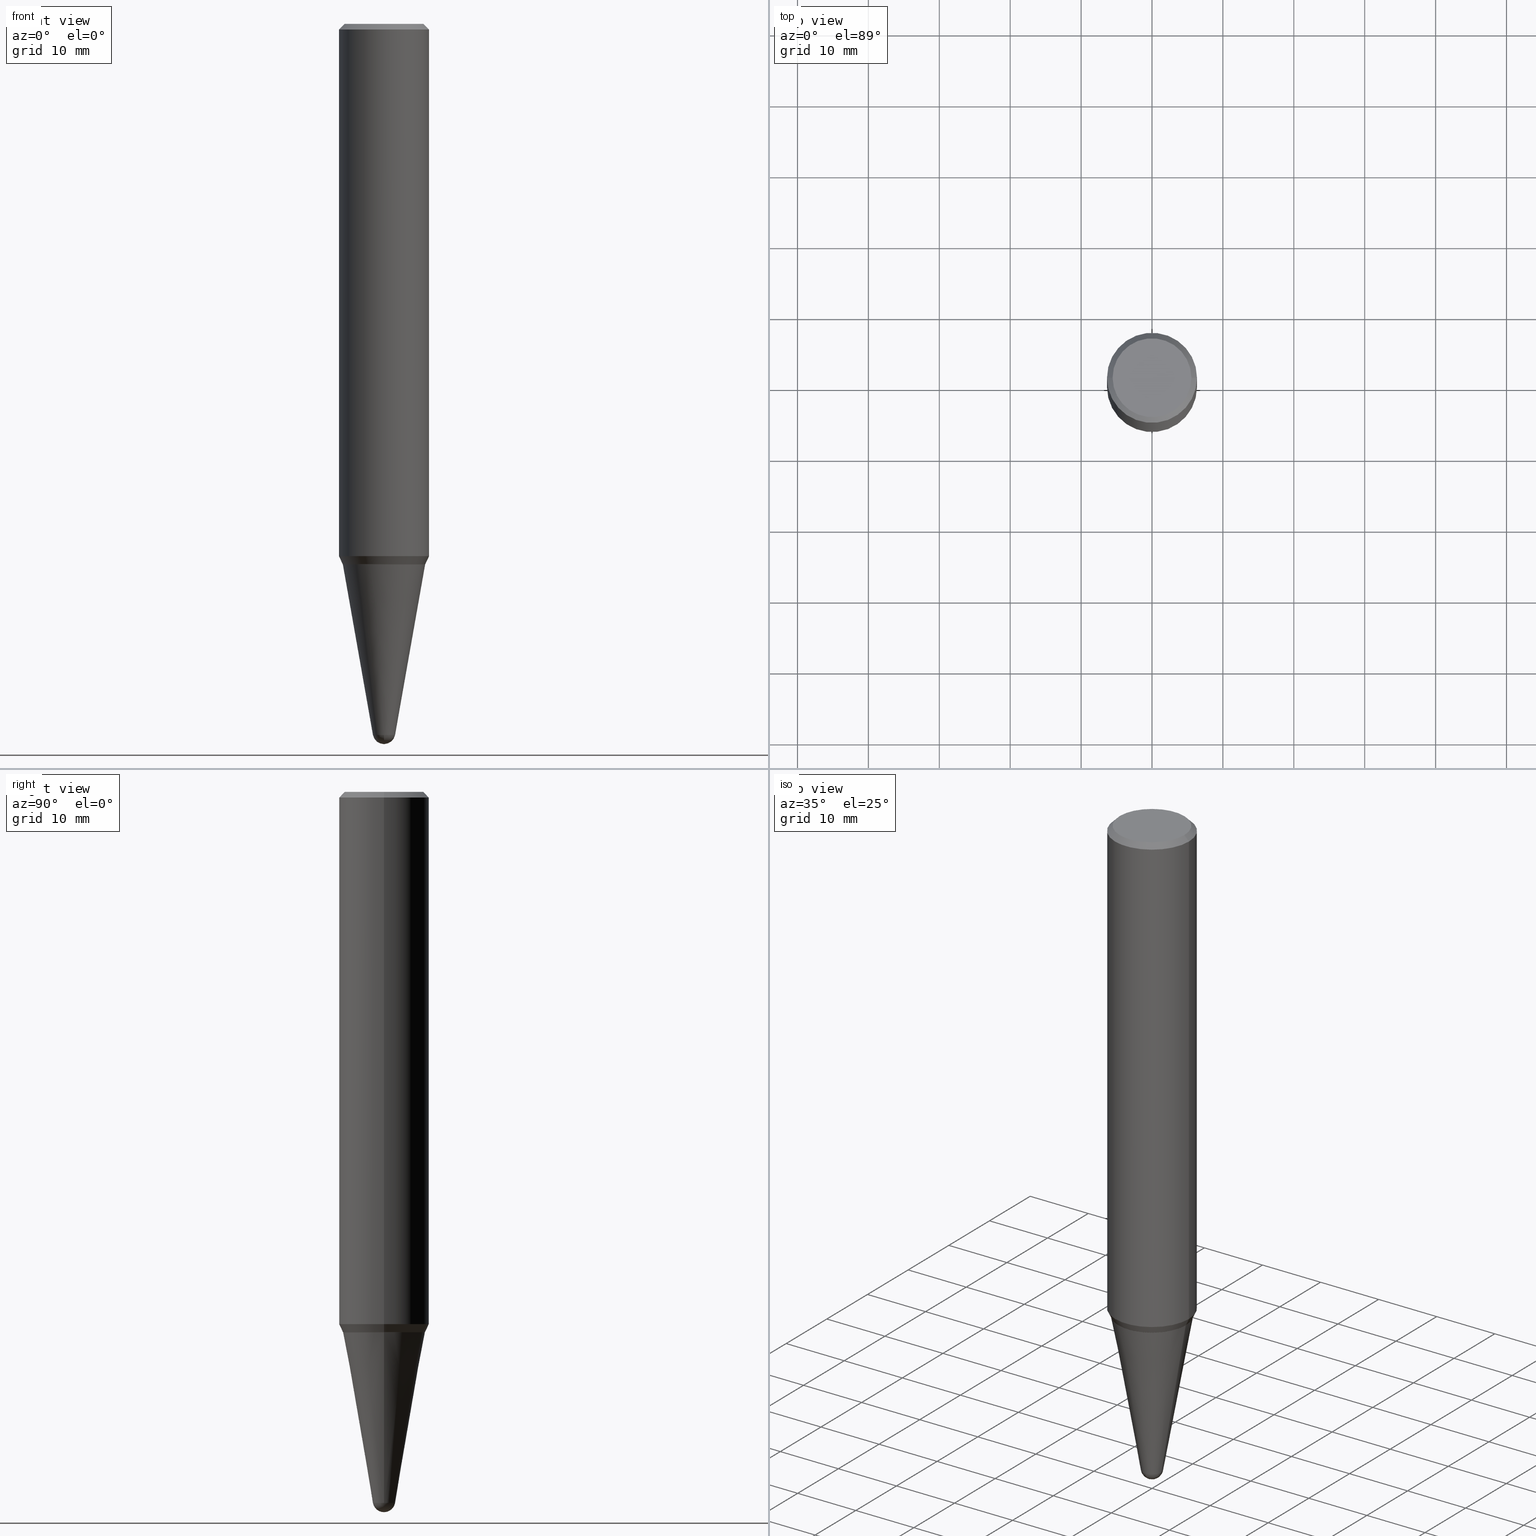
[diagram: canonical four-view strip — front | top / right | iso, engineering-drawing reading convention]
A machine part, canonical four-view strip (front | top / right | iso — engineering-drawing reading convention). The complete STEP part file that produces these views, byte-faithful:
ISO-10303-21;
HEADER;
FILE_DESCRIPTION (( 'STEP AP203' ),
    '1' );
FILE_NAME ('32464.STEP',
    '2024-03-04T15:25:31',
    ( '' ),
    ( '' ),
    'SwSTEP 2.0',
    'SolidWorks 2023',
    '' );
FILE_SCHEMA (( 'CONFIG_CONTROL_DESIGN' ));
ENDSEC;

DATA;
#1 = EDGE_LOOP ( 'NONE', ( #284, #396, #358, #324 ) ) ;
#2 = ORIENTED_EDGE ( 'NONE', *, *, #27, .F. ) ;
#3 = DIRECTION ( 'NONE',  ( 2.445468806185136597E-29, -3.491481338843145583E-15, -1.000000000000000000 ) ) ;
#4 = ORIENTED_EDGE ( 'NONE', *, *, #212, .F. ) ;
#5 = PLANE ( 'NONE',  #149 ) ;
#6 = CARTESIAN_POINT ( 'NONE',  ( 4.486072164429078595E-45, -6.404922118488073332E-31, -1.834442603840539745E-16 ) ) ;
#7 = ORIENTED_EDGE ( 'NONE', *, *, #165, .F. ) ;
#8 = APPROVAL_PERSON_ORGANIZATION ( #25, #404, #241 ) ;
#9 = VERTEX_POINT ( 'NONE', #114 ) ;
#10 = CC_DESIGN_PERSON_AND_ORGANIZATION_ASSIGNMENT ( #134, #66, ( #167 ) ) ;
#11 = CARTESIAN_POINT ( 'NONE',  ( -0.2292707076570457414, -8.845377658046522244E-15, -3.000000000000000444 ) ) ;
#12 =( NAMED_UNIT ( * ) SI_UNIT ( $, .STERADIAN. ) SOLID_ANGLE_UNIT ( ) );
#13 = CARTESIAN_POINT ( 'NONE',  ( 7.336406418555409790E-29, -1.047444401652943635E-14, -3.000000000000000444 ) ) ;
#14 = ADVANCED_FACE ( 'NONE', ( #304 ), #5, .F. ) ;
#15 = CONICAL_SURFACE ( 'NONE', #203, 0.2297707076570451590, 0.4363323129985956506 ) ;
#16 = CARTESIAN_POINT ( 'NONE',  ( 7.335183684152315868E-29, -1.047269827586001248E-14, -2.999499999999999389 ) ) ;
#17 = CIRCLE ( 'NONE', #64, 0.2500000000000000000 ) ;
#18 = CARTESIAN_POINT ( 'NONE',  ( 9.963078480233227451E-29, -1.326933623901194488E-14, -3.937499999999999556 ) ) ;
#19 = APPROVAL_DATE_TIME ( #58, #404 ) ;
#20 = DIRECTION ( 'NONE',  ( 2.438088387897960049E-29, -3.491481338843145188E-15, -1.000000000000000000 ) ) ;
#21 = DATE_AND_TIME ( #376, #150 ) ;
#22 = CARTESIAN_POINT ( 'NONE',  ( -1.450455682483482035E-44, 2.070866303999251778E-30, 5.931196827434296760E-16 ) ) ;
#23 = ADVANCED_FACE ( 'NONE', ( #50 ), #15, .T. ) ;
#24 = EDGE_CURVE ( 'NONE', #190, #460, #83, .T. ) ;
#25 = PERSON_AND_ORGANIZATION ( #228, #101 ) ;
#26 = COORDINATED_UNIVERSAL_TIME_OFFSET ( 5, 0, .BEHIND. ) ;
#27 = EDGE_CURVE ( 'NONE', #265, #43, #39, .T. ) ;
#28 = AXIS2_PLACEMENT_3D ( 'NONE', #22, #447, #371 ) ;
#29 = CONICAL_SURFACE ( 'NONE', #109, 0.2500000000000000000, 0.7853981633974501664 ) ;
#30 = AXIS2_PLACEMENT_3D ( 'NONE', #391, #40, #422 ) ;
#31 = DIRECTION ( 'NONE',  ( 1.000000000000000000, -6.982962677686276177E-15, 0.000000000000000000 ) ) ;
#32 = ORIENTED_EDGE ( 'NONE', *, *, #340, .F. ) ;
#33 = EDGE_CURVE ( 'NONE', #268, #390, #225, .T. ) ;
#34 = DIRECTION ( 'NONE',  ( 1.000000000000000000, -6.982962677686267499E-15, 0.000000000000000000 ) ) ;
#35 = EDGE_LOOP ( 'NONE', ( #73, #71 ) ) ;
#36 = DIRECTION ( 'NONE',  ( -2.445468806185136597E-29, 3.491481338843145583E-15, 1.000000000000000000 ) ) ;
#37 = ORIENTED_EDGE ( 'NONE', *, *, #162, .T. ) ;
#38 = DIRECTION ( 'NONE',  ( -2.445468806185136597E-29, 3.491481338843145583E-15, 1.000000000000000000 ) ) ;
#39 = CIRCLE ( 'NONE', #159, 0.2287707076570457132 ) ;
#40 = DIRECTION ( 'NONE',  ( -2.445468806185136597E-29, 3.491481338843145583E-15, 1.000000000000000000 ) ) ;
#41 = CC_DESIGN_APPROVAL ( #178, ( #443 ) ) ;
#42 = VERTEX_POINT ( 'NONE', #329 ) ;
#43 = VERTEX_POINT ( 'NONE', #429 ) ;
#44 = FACE_OUTER_BOUND ( 'NONE', #35, .T. ) ;
#45 = ORIENTED_EDGE ( 'NONE', *, *, #132, .T. ) ;
#46 = CARTESIAN_POINT ( 'NONE',  ( -0.2187500000000001943, 1.582077481663294407E-15, -3.668885207681187466E-16 ) ) ;
#47 = EDGE_LOOP ( 'NONE', ( #456, #181, #2, #286, #416 ) ) ;
#48 = LINE ( 'NONE', #402, #90 ) ;
#49 = CIRCLE ( 'NONE', #263, 0.2187500000000001943 ) ;
#50 = FACE_OUTER_BOUND ( 'NONE', #401, .T. ) ;
#51 = DIRECTION ( 'NONE',  ( -1.000000000000000000, 6.982962677686266711E-15, 0.000000000000000000 ) ) ;
#52 = PRODUCT_DEFINITION_SHAPE ( 'NONE', 'NONE',  #61 ) ;
#53 = FACE_OUTER_BOUND ( 'NONE', #438, .T. ) ;
#54 = DIRECTION ( 'NONE',  ( 6.982962677686266711E-15, 1.000000000000000000, 0.000000000000000000 ) ) ;
#55 = FACE_OUTER_BOUND ( 'NONE', #185, .T. ) ;
#56 = PERSON_AND_ORGANIZATION ( #228, #101 ) ;
#57 = CARTESIAN_POINT ( 'NONE',  ( -1.450455682483482035E-44, 2.070866303999251778E-30, 5.931196827434296760E-16 ) ) ;
#58 = DATE_AND_TIME ( #210, #450 ) ;
#59 = DIRECTION ( 'NONE',  ( -7.105427357601001859E-15, -1.000000000000000000, 0.000000000000000000 ) ) ;
#60 = ADVANCED_FACE ( 'NONE', ( #116 ), #262, .T. ) ;
#61 = PRODUCT_DEFINITION ( 'UNKNOWN', '', #300, #91 ) ;
#62 = DIRECTION ( 'NONE',  ( 1.000000000000000000, 0.000000000000000000, 0.000000000000000000 ) ) ;
#63 = CONICAL_SURFACE ( 'NONE', #325, 0.2292707076570457414, 0.7853981633961506503 ) ;
#64 = AXIS2_PLACEMENT_3D ( 'NONE', #297, #288, #256 ) ;
#65 = EDGE_CURVE ( 'NONE', #320, #43, #202, .T. ) ;
#66 = PERSON_AND_ORGANIZATION_ROLE ( 'design_owner' ) ;
#67 = DIRECTION ( 'NONE',  ( -0.4226182617407114872, 6.167240084480903876E-15, 0.9063077870366443856 ) ) ;
#68 = ORIENTED_EDGE ( 'NONE', *, *, #74, .T. ) ;
#69 = AXIS2_PLACEMENT_3D ( 'NONE', #310, #333, #405 ) ;
#70 = CARTESIAN_POINT ( 'NONE',  ( -0.06155048456326350781, -1.109859436613565477E-14, -3.948353011104182908 ) ) ;
#71 = ORIENTED_EDGE ( 'NONE', *, *, #147, .T. ) ;
#72 = DIRECTION ( 'NONE',  ( -0.7071067811865487940, 2.468850131082270471E-15, -0.7071067811865462405 ) ) ;
#73 = ORIENTED_EDGE ( 'NONE', *, *, #340, .T. ) ;
#74 = EDGE_CURVE ( 'NONE', #82, #152, #204, .T. ) ;
#75 = CARTESIAN_POINT ( 'NONE',  ( -0.2500000000000000000, 1.636631877582718169E-15, -0.03125000000000005551 ) ) ;
#76 = CC_DESIGN_PERSON_AND_ORGANIZATION_ASSIGNMENT ( #279, #211, ( #300 ) ) ;
#77 = EDGE_LOOP ( 'NONE', ( #113, #224, #289, #234 ) ) ;
#78 = DIRECTION ( 'NONE',  ( 1.000000000000000000, -6.982962677686263555E-15, 0.000000000000000000 ) ) ;
#79 = VECTOR ( 'NONE', #360, 39.37007874015748854 ) ;
#80 = DIRECTION ( 'NONE',  ( -2.445468806185136877E-29, 3.491481338843145188E-15, 1.000000000000000000 ) ) ;
#81 = AXIS2_PLACEMENT_3D ( 'NONE', #187, #459, #354 ) ;
#82 = VERTEX_POINT ( 'NONE', #307 ) ;
#83 = LINE ( 'NONE', #11, #239 ) ;
#84 = DIRECTION ( 'NONE',  ( 1.000000000000000000, -6.982962677686276177E-15, 0.000000000000000000 ) ) ;
#85 = ADVANCED_FACE ( 'NONE', ( #270 ), #99, .T. ) ;
#86 =( NAMED_UNIT ( * ) PLANE_ANGLE_UNIT ( ) SI_UNIT ( $, .RADIAN. ) );
#87 = EDGE_LOOP ( 'NONE', ( #222, #251, #111, #148 ) ) ;
#88 = CARTESIAN_POINT ( 'NONE',  ( 7.642090019328565002E-31, -1.091087918388484967E-16, -0.03125000000000005551 ) ) ;
#89 = PRODUCT_RELATED_PRODUCT_CATEGORY ( 'detail', '', ( #167 ) ) ;
#90 = VECTOR ( 'NONE', #435, 39.37007874015748143 ) ;
#91 = DESIGN_CONTEXT ( 'detailed design', #315, 'design' ) ;
#92 = CARTESIAN_POINT ( 'NONE',  ( 7.642090019328565002E-31, -1.091087918388484967E-16, -0.03125000000000005551 ) ) ;
#93 = DIRECTION ( 'NONE',  ( 1.000000000000000000, -6.982962677686269866E-15, 0.000000000000000000 ) ) ;
#94 = AXIS2_PLACEMENT_3D ( 'NONE', #18, #375, #171 ) ;
#95 = PERSON_AND_ORGANIZATION_ROLE ( 'creator' ) ;
#96 = CC_DESIGN_APPROVAL ( #420, ( #300 ) ) ;
#97 = PLANE ( 'NONE',  #298 ) ;
#98 = EDGE_CURVE ( 'NONE', #390, #9, #131, .T. ) ;
#99 = SPHERICAL_SURFACE ( 'NONE', #94, 0.06250000000000013878 ) ;
#100 = DIRECTION ( 'NONE',  ( 0.000000000000000000, 0.000000000000000000, 1.000000000000000000 ) ) ;
#101 = ORGANIZATION ( 'UNSPECIFIED', 'UNSPECIFIED', '' ) ;
#102 = COORDINATED_UNIVERSAL_TIME_OFFSET ( 5, 0, .BEHIND. ) ;
#103 = CARTESIAN_POINT ( 'NONE',  ( -0.2500000000000000000, -3.438813221624728231E-15, -0.03125000000000005551 ) ) ;
#104 = ORIENTED_EDGE ( 'NONE', *, *, #302, .T. ) ;
#105 = EDGE_CURVE ( 'NONE', #327, #322, #139, .T. ) ;
#106 = DIRECTION ( 'NONE',  ( 1.000000000000000000, -6.982962677686276177E-15, 0.000000000000000000 ) ) ;
#107 = ORIENTED_EDGE ( 'NONE', *, *, #309, .T. ) ;
#108 = AXIS2_PLACEMENT_3D ( 'NONE', #249, #252, #31 ) ;
#109 = AXIS2_PLACEMENT_3D ( 'NONE', #88, #127, #51 ) ;
#110 = DIRECTION ( 'NONE',  ( 1.000000000000000000, -6.982962677686276177E-15, 0.000000000000000000 ) ) ;
#111 = ORIENTED_EDGE ( 'NONE', *, *, #117, .F. ) ;
#112 = FACE_OUTER_BOUND ( 'NONE', #47, .T. ) ;
#113 = ORIENTED_EDGE ( 'NONE', *, *, #200, .F. ) ;
#114 = CARTESIAN_POINT ( 'NONE',  ( 0.2500000000000003886, -1.206697199963268443E-14, -2.956118142573522345 ) ) ;
#115 = DIRECTION ( 'NONE',  ( -2.445468806185136597E-29, 3.491481338843145583E-15, 1.000000000000000000 ) ) ;
#116 = FACE_OUTER_BOUND ( 'NONE', #423, .T. ) ;
#117 = EDGE_CURVE ( 'NONE', #390, #460, #397, .T. ) ;
#118 = AXIS2_PLACEMENT_3D ( 'NONE', #57, #243, #339 ) ;
#119 = DIRECTION ( 'NONE',  ( 0.1736481776669305255, 2.225859148293764464E-15, 0.9848077530122080203 ) ) ;
#120 =( GEOMETRIC_REPRESENTATION_CONTEXT ( 3 ) GLOBAL_UNCERTAINTY_ASSIGNED_CONTEXT ( ( #411 ) ) GLOBAL_UNIT_ASSIGNED_CONTEXT ( ( #266, #86, #12 ) ) REPRESENTATION_CONTEXT ( 'NONE', 'WORKASPACE' ) );
#121 = EDGE_LOOP ( 'NONE', ( #356, #32, #305, #143 ) ) ;
#122 =( LENGTH_UNIT ( ) NAMED_UNIT ( * ) SI_UNIT ( $, .METRE. ) );
#123 = ADVANCED_FACE ( 'NONE', ( #274 ), #454, .T. ) ;
#124 = CC_DESIGN_DATE_AND_TIME_ASSIGNMENT ( #21, #348, ( #443 ) ) ;
#125 = DIRECTION ( 'NONE',  ( -2.445468806185136597E-29, 3.491481338843145583E-15, 1.000000000000000000 ) ) ;
#126 = ORIENTED_EDGE ( 'NONE', *, *, #98, .F. ) ;
#127 = DIRECTION ( 'NONE',  ( 2.445468806185136597E-29, -3.491481338843145583E-15, -1.000000000000000000 ) ) ;
#128 = CIRCLE ( 'NONE', #30, 0.06155048456326350781 ) ;
#129 = DIRECTION ( 'NONE',  ( 0.4226182617407114872, 2.132291770426376174E-16, 0.9063077870366443856 ) ) ;
#130 = DIRECTION ( 'NONE',  ( -2.445468806185136597E-29, 3.491481338843145583E-15, 1.000000000000000000 ) ) ;
#131 = LINE ( 'NONE', #442, #335 ) ;
#132 = EDGE_CURVE ( 'NONE', #188, #152, #344, .T. ) ;
#133 = AXIS2_PLACEMENT_3D ( 'NONE', #92, #130, #377 ) ;
#134 = PERSON_AND_ORGANIZATION ( #228, #101 ) ;
#135 = LOCAL_TIME ( 10, 25, 31.00000000000000000, #316 ) ;
#136 = CARTESIAN_POINT ( 'NONE',  ( 0.2500000000000000000, -1.854849461260415384E-15, -0.03125000000000005551 ) ) ;
#137 = PERSON_AND_ORGANIZATION_ROLE ( 'design_supplier' ) ;
#138 = PERSON_AND_ORGANIZATION ( #228, #101 ) ;
#139 = CIRCLE ( 'NONE', #412, 0.06250000000000013878 ) ;
#140 = CC_DESIGN_SECURITY_CLASSIFICATION ( #443, ( #300 ) ) ;
#141 = DIRECTION ( 'NONE',  ( -2.445468806185136597E-29, 3.491481338843145583E-15, 1.000000000000000000 ) ) ;
#142 = CALENDAR_DATE ( 2024, 4, 3 ) ;
#143 = ORIENTED_EDGE ( 'NONE', *, *, #387, .T. ) ;
#144 = CARTESIAN_POINT ( 'NONE',  ( -0.2297707076570451590, -8.840079203698301420E-15, -2.999499999999999389 ) ) ;
#145 = EDGE_LOOP ( 'NONE', ( #425, #258 ) ) ;
#146 = CARTESIAN_POINT ( 'NONE',  ( 7.642090019328565002E-31, -1.091087918388484967E-16, -0.03125000000000005551 ) ) ;
#147 = EDGE_CURVE ( 'NONE', #349, #434, #49, .T. ) ;
#148 = ORIENTED_EDGE ( 'NONE', *, *, #33, .F. ) ;
#149 = AXIS2_PLACEMENT_3D ( 'NONE', #193, #199, #426 ) ;
#150 = LOCAL_TIME ( 10, 25, 31.00000000000000000, #414 ) ;
#151 = DIRECTION ( 'NONE',  ( 1.000000000000000000, -6.982962677686268288E-15, 0.000000000000000000 ) ) ;
#152 = VERTEX_POINT ( 'NONE', #103 ) ;
#153 = ORIENTED_EDGE ( 'NONE', *, *, #200, .T. ) ;
#154 = CARTESIAN_POINT ( 'NONE',  ( 0.2287707076570457132, -1.207194132984646247E-14, -2.999999999999999556 ) ) ;
#155 = ORIENTED_EDGE ( 'NONE', *, *, #267, .F. ) ;
#156 = DIRECTION ( 'NONE',  ( -0.7071067811856298624, 7.493145998867037789E-15, 0.7071067811874650610 ) ) ;
#157 = ADVANCED_FACE ( 'NONE', ( #53 ), #308, .T. ) ;
#158 = DIRECTION ( 'NONE',  ( -2.445468806185136597E-29, 3.491481338843145583E-15, 1.000000000000000000 ) ) ;
#159 = AXIS2_PLACEMENT_3D ( 'NONE', #437, #125, #78 ) ;
#160 = AXIS2_PLACEMENT_3D ( 'NONE', #462, #257, #151 ) ;
#161 = CARTESIAN_POINT ( 'NONE',  ( 9.655574124462436223E-29, -1.378560085743539787E-14, -3.948353011104182908 ) ) ;
#162 = EDGE_CURVE ( 'NONE', #82, #9, #216, .T. ) ;
#163 = APPLICATION_PROTOCOL_DEFINITION ( 'international standard', 'config_control_design', 1994, #393 ) ;
#164 = EDGE_LOOP ( 'NONE', ( #440, #364, #261, #229, #7 ) ) ;
#165 = EDGE_CURVE ( 'NONE', #43, #265, #182, .T. ) ;
#166 = DIRECTION ( 'NONE',  ( -2.445468806185136597E-29, 3.491481338843145583E-15, 1.000000000000000000 ) ) ;
#167 = PRODUCT ( '32464', '32464', '', ( #374 ) ) ;
#168 = CC_DESIGN_PERSON_AND_ORGANIZATION_ASSIGNMENT ( #213, #95, ( #61 ) ) ;
#169 = CLOSED_SHELL ( 'NONE', ( #445, #157, #123, #217, #14, #250, #23, #60, #273, #245 ) ) ;
#170 = DIRECTION ( 'NONE',  ( 1.000000000000000000, -6.982962677686266711E-15, 4.880466792705917960E-29 ) ) ;
#171 = DIRECTION ( 'NONE',  ( 6.982962677686265922E-15, 1.000000000000000000, 0.000000000000000000 ) ) ;
#172 = CALENDAR_DATE ( 2024, 4, 3 ) ;
#173 = DIRECTION ( 'NONE',  ( -2.445468806185136597E-29, 3.491481338843145583E-15, 1.000000000000000000 ) ) ;
#174 = AXIS2_PLACEMENT_3D ( 'NONE', #6, #291, #424 ) ;
#175 = APPROVAL_STATUS ( 'not_yet_approved' ) ;
#176 = AXIS2_PLACEMENT_3D ( 'NONE', #198, #399, #230 ) ;
#177 = CARTESIAN_POINT ( 'NONE',  ( 7.335183684152315868E-29, -1.047269827586001248E-14, -2.999499999999999389 ) ) ;
#178 = APPROVAL ( #175, 'UNSPECIFIED' ) ;
#179 = APPROVAL_ROLE ( '' ) ;
#180 = APPROVAL_STATUS ( 'not_yet_approved' ) ;
#181 = ORIENTED_EDGE ( 'NONE', *, *, #65, .T. ) ;
#182 = CIRCLE ( 'NONE', #69, 0.2287707076570457132 ) ;
#183 = CIRCLE ( 'NONE', #280, 0.2500000000000003886 ) ;
#184 = DIRECTION ( 'NONE',  ( -2.445468806185136597E-29, 3.491481338843145583E-15, 1.000000000000000000 ) ) ;
#185 = EDGE_LOOP ( 'NONE', ( #191, #215 ) ) ;
#186 = EDGE_CURVE ( 'NONE', #268, #190, #432, .T. ) ;
#187 = CARTESIAN_POINT ( 'NONE',  ( 8.972144328858154701E-45, -1.280984423697614491E-30, -3.668885207681078998E-16 ) ) ;
#188 = VERTEX_POINT ( 'NONE', #136 ) ;
#189 = DIRECTION ( 'NONE',  ( 1.000000000000000000, -6.982962677686269866E-15, 0.000000000000000000 ) ) ;
#190 = VERTEX_POINT ( 'NONE', #206 ) ;
#191 = ORIENTED_EDGE ( 'NONE', *, *, #27, .T. ) ;
#192 = ORIENTED_EDGE ( 'NONE', *, *, #74, .F. ) ;
#193 = CARTESIAN_POINT ( 'NONE',  ( 2.344126477742808465E-29, -1.762367303470133462E-14, -2.999999999999999556 ) ) ;
#194 = PLANE ( 'NONE',  #174 ) ;
#195 = VERTEX_POINT ( 'NONE', #237 ) ;
#196 = AXIS2_PLACEMENT_3D ( 'NONE', #328, #36, #189 ) ;
#197 = AXIS2_PLACEMENT_3D ( 'NONE', #323, #184, #106 ) ;
#198 = CARTESIAN_POINT ( 'NONE',  ( 7.336406418555409790E-29, -1.047444401652943635E-14, -3.000000000000000444 ) ) ;
#199 = DIRECTION ( 'NONE',  ( -2.438088387897960049E-29, 3.491481338843145188E-15, 1.000000000000000000 ) ) ;
#200 = EDGE_CURVE ( 'NONE', #327, #42, #431, .T. ) ;
#201 = CARTESIAN_POINT ( 'NONE',  ( 7.229094705061496755E-29, -1.032123133021111460E-14, -2.956118142573522345 ) ) ;
#202 = LINE ( 'NONE', #369, #278 ) ;
#203 = AXIS2_PLACEMENT_3D ( 'NONE', #332, #38, #259 ) ;
#204 = LINE ( 'NONE', #409, #403 ) ;
#205 = APPLICATION_PROTOCOL_DEFINITION ( 'international standard', 'config_control_design', 1994, #315 ) ;
#206 = CARTESIAN_POINT ( 'NONE',  ( -0.2292707076570457414, -8.842728430872411832E-15, -3.000000000000000444 ) ) ;
#207 = ADVANCED_FACE ( 'NONE', ( #55 ), #97, .F. ) ;
#208 = APPROVAL_DATE_TIME ( #347, #420 ) ;
#209 = AXIS2_PLACEMENT_3D ( 'NONE', #16, #141, #236 ) ;
#210 = CALENDAR_DATE ( 2024, 4, 3 ) ;
#211 = PERSON_AND_ORGANIZATION_ROLE ( 'creator' ) ;
#212 = EDGE_CURVE ( 'NONE', #434, #152, #448, .T. ) ;
#213 = PERSON_AND_ORGANIZATION ( #228, #101 ) ;
#214 = FACE_OUTER_BOUND ( 'NONE', #164, .T. ) ;
#215 = ORIENTED_EDGE ( 'NONE', *, *, #165, .T. ) ;
#216 = CIRCLE ( 'NONE', #246, 0.2500000000000003886 ) ;
#217 = ADVANCED_FACE ( 'NONE', ( #457 ), #63, .T. ) ;
#218 = APPROVAL_PERSON_ORGANIZATION ( #56, #178, #179 ) ;
#219 = DIRECTION ( 'NONE',  ( -1.000000000000000000, 6.982962677686266711E-15, 0.000000000000000000 ) ) ;
#220 = ORIENTED_EDGE ( 'NONE', *, *, #267, .T. ) ;
#221 = CARTESIAN_POINT ( 'NONE',  ( 7.229094705061496755E-29, -1.032123133021111460E-14, -2.956118142573522345 ) ) ;
#222 = ORIENTED_EDGE ( 'NONE', *, *, #186, .T. ) ;
#223 = CARTESIAN_POINT ( 'NONE',  ( 1.011859267527348485E-28, -1.348372680144230682E-14, -4.000000000000000000 ) ) ;
#224 = ORIENTED_EDGE ( 'NONE', *, *, #105, .T. ) ;
#225 = LINE ( 'NONE', #296, #79 ) ;
#226 = AXIS2_PLACEMENT_3D ( 'NONE', #363, #306, #303 ) ;
#227 = FACE_OUTER_BOUND ( 'NONE', #121, .T. ) ;
#228 = PERSON ( 'UNSPECIFIED', 'UNSPECIFIED', 'UNSPECIFIED', ('UNSPECIFIED'), ('UNSPECIFIED'), ('UNSPECIFIED') ) ;
#229 = ORIENTED_EDGE ( 'NONE', *, *, #436, .T. ) ;
#230 = DIRECTION ( 'NONE',  ( 1.000000000000000000, -6.982962677686269866E-15, 0.000000000000000000 ) ) ;
#231 = ORIENTED_EDGE ( 'NONE', *, *, #98, .T. ) ;
#232 = CLOSED_SHELL ( 'NONE', ( #341, #85, #281, #277, #207 ) ) ;
#233 = DIRECTION ( 'NONE',  ( -2.445468806185136597E-29, 3.491481338843145583E-15, 1.000000000000000000 ) ) ;
#234 = ORIENTED_EDGE ( 'NONE', *, *, #317, .F. ) ;
#235 = ORIENTED_EDGE ( 'NONE', *, *, #147, .F. ) ;
#236 = DIRECTION ( 'NONE',  ( 1.000000000000000000, -6.982962677686268288E-15, 0.000000000000000000 ) ) ;
#237 = CARTESIAN_POINT ( 'NONE',  ( 0.06155048456326350781, -1.314367346189031684E-14, -3.948353011104182908 ) ) ;
#238 = AXIS2_PLACEMENT_3D ( 'NONE', #406, #370, #54 ) ;
#239 = VECTOR ( 'NONE', #156, 39.37007874015748854 ) ;
#240 = CC_DESIGN_APPROVAL ( #404, ( #61 ) ) ;
#241 = APPROVAL_ROLE ( '' ) ;
#242 = CARTESIAN_POINT ( 'NONE',  ( 7.336406418555408669E-29, -1.047444401652943478E-14, -2.999999999999999556 ) ) ;
#243 = DIRECTION ( 'NONE',  ( -2.445468806185136597E-29, 3.491481338843145583E-15, 1.000000000000000000 ) ) ;
#244 = DATE_TIME_ROLE ( 'creation_date' ) ;
#245 = ADVANCED_FACE ( 'NONE', ( #44 ), #194, .F. ) ;
#246 = AXIS2_PLACEMENT_3D ( 'NONE', #201, #444, #343 ) ;
#247 = LOCAL_TIME ( 10, 25, 31.00000000000000000, #26 ) ;
#248 = APPROVAL_STATUS ( 'not_yet_approved' ) ;
#249 = CARTESIAN_POINT ( 'NONE',  ( 9.655574124462436223E-29, -1.378560085743539787E-14, -3.948353011104182908 ) ) ;
#250 = ADVANCED_FACE ( 'NONE', ( #350 ), #384, .T. ) ;
#251 = ORIENTED_EDGE ( 'NONE', *, *, #24, .T. ) ;
#252 = DIRECTION ( 'NONE',  ( -2.445468806185136597E-29, 3.491481338843145583E-15, 1.000000000000000000 ) ) ;
#253 = ORIENTED_EDGE ( 'NONE', *, *, #387, .F. ) ;
#254 = AXIS2_PLACEMENT_3D ( 'NONE', #146, #3, #219 ) ;
#255 = VECTOR ( 'NONE', #119, 39.37007874015748143 ) ;
#256 = DIRECTION ( 'NONE',  ( 1.000000000000000000, -6.982962677686266711E-15, 0.000000000000000000 ) ) ;
#257 = DIRECTION ( 'NONE',  ( -2.445468806185136597E-29, 3.491481338843145583E-15, 1.000000000000000000 ) ) ;
#258 = ORIENTED_EDGE ( 'NONE', *, *, #453, .F. ) ;
#259 = DIRECTION ( 'NONE',  ( 1.000000000000000000, -6.982962677686268288E-15, 0.000000000000000000 ) ) ;
#260 = CARTESIAN_POINT ( 'NONE',  ( 0.2292707076570457414, -1.207543281118530705E-14, -3.000000000000000444 ) ) ;
#261 = ORIENTED_EDGE ( 'NONE', *, *, #410, .T. ) ;
#262 = CYLINDRICAL_SURFACE ( 'NONE', #28, 0.2500000000000002220 ) ;
#263 = AXIS2_PLACEMENT_3D ( 'NONE', #282, #415, #170 ) ;
#264 = FACE_OUTER_BOUND ( 'NONE', #294, .T. ) ;
#265 = VERTEX_POINT ( 'NONE', #154 ) ;
#266 =( CONVERSION_BASED_UNIT ( 'INCH', #331 ) LENGTH_UNIT ( ) NAMED_UNIT ( #446 ) );
#267 = EDGE_CURVE ( 'NONE', #460, #82, #319, .T. ) ;
#268 = VERTEX_POINT ( 'NONE', #260 ) ;
#269 = AXIS2_PLACEMENT_3D ( 'NONE', #13, #166, #93 ) ;
#270 = FACE_OUTER_BOUND ( 'NONE', #77, .T. ) ;
#271 = DIRECTION ( 'NONE',  ( -1.000000000000000000, 7.105427357601001070E-15, -4.926315508542082329E-29 ) ) ;
#272 = ORIENTED_EDGE ( 'NONE', *, *, #302, .F. ) ;
#273 = ADVANCED_FACE ( 'NONE', ( #227 ), #449, .T. ) ;
#274 = FACE_OUTER_BOUND ( 'NONE', #386, .T. ) ;
#275 = SECURITY_CLASSIFICATION_LEVEL ( 'unclassified' ) ;
#276 = DIRECTION ( 'NONE',  ( -0.1736481776669305255, 4.672282404182341556E-15, 0.9848077530122080203 ) ) ;
#277 = ADVANCED_FACE ( 'NONE', ( #214 ), #313, .T. ) ;
#278 = VECTOR ( 'NONE', #276, 39.37007874015748143 ) ;
#279 = PERSON_AND_ORGANIZATION ( #228, #101 ) ;
#280 = AXIS2_PLACEMENT_3D ( 'NONE', #221, #115, #34 ) ;
#281 = ADVANCED_FACE ( 'NONE', ( #285 ), #351, .T. ) ;
#282 = CARTESIAN_POINT ( 'NONE',  ( 8.972144328858154701E-45, -1.280984423697614491E-30, -3.668885207681078998E-16 ) ) ;
#283 = PERSON_AND_ORGANIZATION_ROLE ( 'classification_officer' ) ;
#284 = ORIENTED_EDGE ( 'NONE', *, *, #24, .F. ) ;
#285 = FACE_OUTER_BOUND ( 'NONE', #299, .T. ) ;
#286 = ORIENTED_EDGE ( 'NONE', *, *, #436, .F. ) ;
#287 = EDGE_CURVE ( 'NONE', #320, #322, #441, .T. ) ;
#288 = DIRECTION ( 'NONE',  ( -2.445468806185136597E-29, 3.491481338843145583E-15, 1.000000000000000000 ) ) ;
#289 = ORIENTED_EDGE ( 'NONE', *, *, #287, .F. ) ;
#290 = CIRCLE ( 'NONE', #81, 0.2187500000000001943 ) ;
#291 = DIRECTION ( 'NONE',  ( 2.438088387897960049E-29, -3.491481338843145188E-15, -1.000000000000000000 ) ) ;
#292 = ADVANCED_BREP_SHAPE_REPRESENTATION ( '32464', ( #451, #293, #407 ), #120 ) ;
#293 = MANIFOLD_SOLID_BREP ( 'Body-Move/Copy2[2]', #169 ) ;
#294 = EDGE_LOOP ( 'NONE', ( #235, #419, #45, #4 ) ) ;
#295 = DIRECTION ( 'NONE',  ( 6.982962677686265922E-15, 1.000000000000000000, 0.000000000000000000 ) ) ;
#296 = CARTESIAN_POINT ( 'NONE',  ( 0.2292707076570457414, -1.207543281118530705E-14, -3.000000000000000444 ) ) ;
#297 = CARTESIAN_POINT ( 'NONE',  ( 7.642090019328565002E-31, -1.091087918388484967E-16, -0.03125000000000005551 ) ) ;
#298 = AXIS2_PLACEMENT_3D ( 'NONE', #242, #20, #312 ) ;
#299 = EDGE_LOOP ( 'NONE', ( #352, #153, #362, #392 ) ) ;
#300 = PRODUCT_DEFINITION_FORMATION_WITH_SPECIFIED_SOURCE ( 'ANY', '', #167, .NOT_KNOWN. ) ;
#301 = AXIS2_PLACEMENT_3D ( 'NONE', #357, #158, #110 ) ;
#302 = EDGE_CURVE ( 'NONE', #9, #188, #385, .T. ) ;
#303 = DIRECTION ( 'NONE',  ( 1.000000000000000000, -6.982962677686276177E-15, 0.000000000000000000 ) ) ;
#304 = FACE_OUTER_BOUND ( 'NONE', #145, .T. ) ;
#305 = ORIENTED_EDGE ( 'NONE', *, *, #212, .T. ) ;
#306 = DIRECTION ( 'NONE',  ( -2.445468806185136597E-29, 3.491481338843145583E-15, 1.000000000000000000 ) ) ;
#307 = CARTESIAN_POINT ( 'NONE',  ( -0.2500000000000003886, -8.544874490810860981E-15, -2.956118142573522345 ) ) ;
#308 = CYLINDRICAL_SURFACE ( 'NONE', #118, 0.2500000000000002220 ) ;
#309 = EDGE_CURVE ( 'NONE', #9, #82, #183, .T. ) ;
#310 = CARTESIAN_POINT ( 'NONE',  ( 7.336406418555408669E-29, -1.047444401652943478E-14, -2.999999999999999556 ) ) ;
#311 = DATE_AND_TIME ( #338, #247 ) ;
#312 = DIRECTION ( 'NONE',  ( -1.000000000000000000, 6.982962677686265922E-15, -4.876176775795935793E-29 ) ) ;
#313 = CONICAL_SURFACE ( 'NONE', #108, 0.06155048456326350781, 0.1745329251994331421 ) ;
#314 = DATE_AND_TIME ( #172, #135 ) ;
#315 = APPLICATION_CONTEXT ( 'configuration controlled 3d designs of mechanical parts and assemblies' ) ;
#316 = COORDINATED_UNIVERSAL_TIME_OFFSET ( 5, 0, .BEHIND. ) ;
#317 = EDGE_CURVE ( 'NONE', #42, #320, #128, .T. ) ;
#318 = COORDINATED_UNIVERSAL_TIME_OFFSET ( 5, 0, .BEHIND. ) ;
#319 = LINE ( 'NONE', #144, #379 ) ;
#320 = VERTEX_POINT ( 'NONE', #70 ) ;
#321 = CARTESIAN_POINT ( 'NONE',  ( 0.2187500000000001943, -1.662483614147128246E-15, -3.668885207680967078E-16 ) ) ;
#322 = VERTEX_POINT ( 'NONE', #395 ) ;
#323 = CARTESIAN_POINT ( 'NONE',  ( 9.655574124462436223E-29, -1.378560085743539787E-14, -3.948353011104182908 ) ) ;
#324 = ORIENTED_EDGE ( 'NONE', *, *, #353, .F. ) ;
#325 = AXIS2_PLACEMENT_3D ( 'NONE', #430, #382, #330 ) ;
#326 = VECTOR ( 'NONE', #80, 39.37007874015748143 ) ;
#327 = VERTEX_POINT ( 'NONE', #223 ) ;
#328 = CARTESIAN_POINT ( 'NONE',  ( 7.336406418555409790E-29, -1.047444401652943635E-14, -3.000000000000000444 ) ) ;
#329 = CARTESIAN_POINT ( 'NONE',  ( 4.298047364988705659E-16, 0.06155048456324976186, -3.948353011104182908 ) ) ;
#330 = DIRECTION ( 'NONE',  ( 1.000000000000000000, -6.982962677686269866E-15, 0.000000000000000000 ) ) ;
#331 = LENGTH_MEASURE_WITH_UNIT ( LENGTH_MEASURE( 0.02539999999999999897 ), #122 );
#332 = CARTESIAN_POINT ( 'NONE',  ( 7.335183684152315868E-29, -1.047269827586001248E-14, -2.999499999999999389 ) ) ;
#333 = DIRECTION ( 'NONE',  ( -2.445468806185136597E-29, 3.491481338843145583E-15, 1.000000000000000000 ) ) ;
#334 = CARTESIAN_POINT ( 'NONE',  ( 9.963078480233227451E-29, -1.326933623901194488E-14, -3.937499999999999556 ) ) ;
#335 = VECTOR ( 'NONE', #129, 39.37007874015748143 ) ;
#336 = CIRCLE ( 'NONE', #160, 0.2297707076570451590 ) ;
#337 = DIRECTION ( 'NONE',  ( -2.445468806185136877E-29, 3.491481338843145188E-15, 1.000000000000000000 ) ) ;
#338 = CALENDAR_DATE ( 2024, 4, 3 ) ;
#339 = DIRECTION ( 'NONE',  ( 1.000000000000000000, -6.982962677686266711E-15, 4.852736867747361723E-29 ) ) ;
#340 = EDGE_CURVE ( 'NONE', #434, #349, #290, .T. ) ;
#341 = ADVANCED_FACE ( 'NONE', ( #112 ), #380, .T. ) ;
#342 = APPROVAL_ROLE ( '' ) ;
#343 = DIRECTION ( 'NONE',  ( 1.000000000000000000, -6.982962677686267499E-15, 0.000000000000000000 ) ) ;
#344 = CIRCLE ( 'NONE', #133, 0.2500000000000000000 ) ;
#345 = CIRCLE ( 'NONE', #176, 0.2292707076570457414 ) ;
#346 = SHAPE_DEFINITION_REPRESENTATION ( #52, #292 ) ;
#347 = DATE_AND_TIME ( #142, #373 ) ;
#348 = DATE_TIME_ROLE ( 'classification_date' ) ;
#349 = VERTEX_POINT ( 'NONE', #321 ) ;
#350 = FACE_OUTER_BOUND ( 'NONE', #1, .T. ) ;
#351 = SPHERICAL_SURFACE ( 'NONE', #421, 0.06250000000000013878 ) ;
#352 = ORIENTED_EDGE ( 'NONE', *, *, #105, .F. ) ;
#353 = EDGE_CURVE ( 'NONE', #460, #390, #336, .T. ) ;
#354 = DIRECTION ( 'NONE',  ( 1.000000000000000000, -6.982962677686266711E-15, 4.880466792705917960E-29 ) ) ;
#355 = CC_DESIGN_PERSON_AND_ORGANIZATION_ASSIGNMENT ( #138, #283, ( #443 ) ) ;
#356 = ORIENTED_EDGE ( 'NONE', *, *, #418, .F. ) ;
#357 = CARTESIAN_POINT ( 'NONE',  ( 9.655574124462436223E-29, -1.378560085743539787E-14, -3.948353011104182908 ) ) ;
#358 = ORIENTED_EDGE ( 'NONE', *, *, #33, .T. ) ;
#359 = APPROVAL_PERSON_ORGANIZATION ( #455, #420, #342 ) ;
#360 = DIRECTION ( 'NONE',  ( 0.7071067811856298624, -2.468850131072645185E-15, 0.7071067811874650610 ) ) ;
#361 = CARTESIAN_POINT ( 'NONE',  ( 0.2500000000000002220, -1.745740669421565889E-15, 5.931196827434418047E-16 ) ) ;
#362 = ORIENTED_EDGE ( 'NONE', *, *, #394, .F. ) ;
#363 = CARTESIAN_POINT ( 'NONE',  ( 9.655574124462436223E-29, -1.378560085743539787E-14, -3.948353011104182908 ) ) ;
#364 = ORIENTED_EDGE ( 'NONE', *, *, #287, .T. ) ;
#365 = VECTOR ( 'NONE', #72, 39.37007874015748143 ) ;
#366 = ORIENTED_EDGE ( 'NONE', *, *, #117, .T. ) ;
#367 = CIRCLE ( 'NONE', #226, 0.06155048456326350781 ) ;
#368 = CARTESIAN_POINT ( 'NONE',  ( 0.06155048456326350781, -1.421540559393417278E-14, -3.948353011104182908 ) ) ;
#369 = CARTESIAN_POINT ( 'NONE',  ( -0.06155048456326350781, -1.334825836054598876E-14, -3.948353011104182908 ) ) ;
#370 = DIRECTION ( 'NONE',  ( 1.000000000000000000, -6.982962677686265922E-15, 4.883557194083112340E-29 ) ) ;
#371 = DIRECTION ( 'NONE',  ( 1.000000000000000000, -6.982962677686266711E-15, 4.852736867747361723E-29 ) ) ;
#372 = AXIS2_PLACEMENT_3D ( 'NONE', #177, #173, #452 ) ;
#373 = LOCAL_TIME ( 10, 25, 31.00000000000000000, #318 ) ;
#374 = MECHANICAL_CONTEXT ( 'NONE', #393, 'mechanical' ) ;
#375 = DIRECTION ( 'NONE',  ( -1.000000000000000000, 6.982962677686265922E-15, -4.883557194083112901E-29 ) ) ;
#376 = CALENDAR_DATE ( 2024, 4, 3 ) ;
#377 = DIRECTION ( 'NONE',  ( 1.000000000000000000, -6.982962677686266711E-15, 0.000000000000000000 ) ) ;
#378 = CARTESIAN_POINT ( 'NONE',  ( 0.000000000000000000, 0.000000000000000000, 0.000000000000000000 ) ) ;
#379 = VECTOR ( 'NONE', #67, 39.37007874015748143 ) ;
#380 = CONICAL_SURFACE ( 'NONE', #301, 0.06155048456326350781, 0.1745329251994331421 ) ;
#381 = PERSON_AND_ORGANIZATION ( #228, #101 ) ;
#382 = DIRECTION ( 'NONE',  ( -2.445468806185136597E-29, 3.491481338843145583E-15, 1.000000000000000000 ) ) ;
#383 = ORIENTED_EDGE ( 'NONE', *, *, #309, .F. ) ;
#384 = CONICAL_SURFACE ( 'NONE', #196, 0.2292707076570457414, 0.7853981633961506503 ) ;
#385 = LINE ( 'NONE', #361, #326 ) ;
#386 = EDGE_LOOP ( 'NONE', ( #366, #220, #383, #126 ) ) ;
#387 = EDGE_CURVE ( 'NONE', #152, #188, #17, .T. ) ;
#388 = CC_DESIGN_PERSON_AND_ORGANIZATION_ASSIGNMENT ( #381, #137, ( #300 ) ) ;
#389 = CARTESIAN_POINT ( 'NONE',  ( 0.2297707076570451590, -1.207717855185472146E-14, -2.999499999999999389 ) ) ;
#390 = VERTEX_POINT ( 'NONE', #389 ) ;
#391 = CARTESIAN_POINT ( 'NONE',  ( 9.655574124462436223E-29, -1.378560085743539787E-14, -3.948353011104182908 ) ) ;
#392 = ORIENTED_EDGE ( 'NONE', *, *, #410, .F. ) ;
#393 = APPLICATION_CONTEXT ( 'configuration controlled 3d designs of mechanical parts and assemblies' ) ;
#394 = EDGE_CURVE ( 'NONE', #195, #42, #367, .T. ) ;
#395 = CARTESIAN_POINT ( 'NONE',  ( -4.373424968893110875E-16, -0.06155048456327685824, -3.948353011104182908 ) ) ;
#396 = ORIENTED_EDGE ( 'NONE', *, *, #453, .T. ) ;
#397 = CIRCLE ( 'NONE', #209, 0.2297707076570451590 ) ;
#398 = ORIENTED_EDGE ( 'NONE', *, *, #162, .F. ) ;
#399 = DIRECTION ( 'NONE',  ( -2.445468806185136597E-29, 3.491481338843145583E-15, 1.000000000000000000 ) ) ;
#400 = CARTESIAN_POINT ( 'NONE',  ( -0.2297707076570451590, -8.840079203698301420E-15, -2.999499999999999389 ) ) ;
#401 = EDGE_LOOP ( 'NONE', ( #155, #428, #231, #398 ) ) ;
#402 = CARTESIAN_POINT ( 'NONE',  ( 0.2500000000000000000, -1.824233291281731597E-15, -0.03125000000000005551 ) ) ;
#403 = VECTOR ( 'NONE', #337, 39.37007874015748143 ) ;
#404 = APPROVAL ( #248, 'UNSPECIFIED' ) ;
#405 = DIRECTION ( 'NONE',  ( 1.000000000000000000, -6.982962677686263555E-15, 0.000000000000000000 ) ) ;
#406 = CARTESIAN_POINT ( 'NONE',  ( 9.963078480233227451E-29, -1.326933623901194488E-14, -3.937499999999999556 ) ) ;
#407 = AXIS2_PLACEMENT_3D ( 'NONE', #378, #100, #62 ) ;
#408 = APPROVAL_DATE_TIME ( #311, #178 ) ;
#409 = CARTESIAN_POINT ( 'NONE',  ( -0.2500000000000002220, 1.776356839400254015E-15, 5.931196827434174486E-16 ) ) ;
#410 = EDGE_CURVE ( 'NONE', #322, #195, #433, .T. ) ;
#411 = UNCERTAINTY_MEASURE_WITH_UNIT (LENGTH_MEASURE( 1.000000000000000082E-05 ), #266, 'distance_accuracy_value', 'NONE');
#412 = AXIS2_PLACEMENT_3D ( 'NONE', #334, #271, #59 ) ;
#413 = AXIS2_PLACEMENT_3D ( 'NONE', #161, #233, #84 ) ;
#414 = COORDINATED_UNIVERSAL_TIME_OFFSET ( 5, 0, .BEHIND. ) ;
#415 = DIRECTION ( 'NONE',  ( -2.445468806185136597E-29, 3.491481338843145583E-15, 1.000000000000000000 ) ) ;
#416 = ORIENTED_EDGE ( 'NONE', *, *, #394, .T. ) ;
#417 = DIRECTION ( 'NONE',  ( -1.000000000000000000, 6.982962677686265922E-15, -4.883557194083112901E-29 ) ) ;
#418 = EDGE_CURVE ( 'NONE', #349, #188, #48, .T. ) ;
#419 = ORIENTED_EDGE ( 'NONE', *, *, #418, .T. ) ;
#420 = APPROVAL ( #180, 'UNSPECIFIED' ) ;
#421 = AXIS2_PLACEMENT_3D ( 'NONE', #427, #417, #295 ) ;
#422 = DIRECTION ( 'NONE',  ( 1.000000000000000000, -6.982962677686276177E-15, 0.000000000000000000 ) ) ;
#423 = EDGE_LOOP ( 'NONE', ( #192, #37, #104, #253 ) ) ;
#424 = DIRECTION ( 'NONE',  ( -1.000000000000000000, 6.982962677686265922E-15, -4.876176775795935793E-29 ) ) ;
#425 = ORIENTED_EDGE ( 'NONE', *, *, #186, .F. ) ;
#426 = DIRECTION ( 'NONE',  ( 1.000000000000000000, -6.982962677686265922E-15, 4.876176775795935793E-29 ) ) ;
#427 = CARTESIAN_POINT ( 'NONE',  ( 9.963078480233227451E-29, -1.326933623901194488E-14, -3.937499999999999556 ) ) ;
#428 = ORIENTED_EDGE ( 'NONE', *, *, #353, .T. ) ;
#429 = CARTESIAN_POINT ( 'NONE',  ( -0.2287707076570457132, -8.848930371725322354E-15, -2.999999999999999556 ) ) ;
#430 = CARTESIAN_POINT ( 'NONE',  ( 7.336406418555409790E-29, -1.047444401652943635E-14, -3.000000000000000444 ) ) ;
#431 = CIRCLE ( 'NONE', #238, 0.06250000000000013878 ) ;
#432 = CIRCLE ( 'NONE', #269, 0.2292707076570457414 ) ;
#433 = CIRCLE ( 'NONE', #413, 0.06155048456326350781 ) ;
#434 = VERTEX_POINT ( 'NONE', #46 ) ;
#435 = DIRECTION ( 'NONE',  ( 0.7071067811865487940, -7.319954787623260779E-15, -0.7071067811865462405 ) ) ;
#436 = EDGE_CURVE ( 'NONE', #195, #265, #439, .T. ) ;
#437 = CARTESIAN_POINT ( 'NONE',  ( 7.336406418555408669E-29, -1.047444401652943478E-14, -2.999999999999999556 ) ) ;
#438 = EDGE_LOOP ( 'NONE', ( #107, #68, #458, #272 ) ) ;
#439 = LINE ( 'NONE', #368, #255 ) ;
#440 = ORIENTED_EDGE ( 'NONE', *, *, #65, .F. ) ;
#441 = CIRCLE ( 'NONE', #197, 0.06155048456326350781 ) ;
#442 = CARTESIAN_POINT ( 'NONE',  ( 0.2297707076570451590, -1.207717855185472146E-14, -2.999499999999999389 ) ) ;
#443 = SECURITY_CLASSIFICATION ( '', '', #275 ) ;
#444 = DIRECTION ( 'NONE',  ( -2.445468806185136597E-29, 3.491481338843145583E-15, 1.000000000000000000 ) ) ;
#445 = ADVANCED_FACE ( 'NONE', ( #264 ), #29, .T. ) ;
#446 = DIMENSIONAL_EXPONENTS ( 1.000000000000000000, 0.000000000000000000, 0.000000000000000000, 0.000000000000000000, 0.000000000000000000, 0.000000000000000000, 0.000000000000000000 ) ;
#447 = DIRECTION ( 'NONE',  ( -2.445468806185136597E-29, 3.491481338843145583E-15, 1.000000000000000000 ) ) ;
#448 = LINE ( 'NONE', #75, #365 ) ;
#449 = CONICAL_SURFACE ( 'NONE', #254, 0.2500000000000000000, 0.7853981633974501664 ) ;
#450 = LOCAL_TIME ( 10, 25, 31.00000000000000000, #102 ) ;
#451 = MANIFOLD_SOLID_BREP ( 'Body-Move/Copy2[1]', #232 ) ;
#452 = DIRECTION ( 'NONE',  ( 1.000000000000000000, -6.982962677686268288E-15, 0.000000000000000000 ) ) ;
#453 = EDGE_CURVE ( 'NONE', #190, #268, #345, .T. ) ;
#454 = CONICAL_SURFACE ( 'NONE', #372, 0.2297707076570451590, 0.4363323129985956506 ) ;
#455 = PERSON_AND_ORGANIZATION ( #228, #101 ) ;
#456 = ORIENTED_EDGE ( 'NONE', *, *, #317, .T. ) ;
#457 = FACE_OUTER_BOUND ( 'NONE', #87, .T. ) ;
#458 = ORIENTED_EDGE ( 'NONE', *, *, #132, .F. ) ;
#459 = DIRECTION ( 'NONE',  ( -2.445468806185136597E-29, 3.491481338843145583E-15, 1.000000000000000000 ) ) ;
#460 = VERTEX_POINT ( 'NONE', #400 ) ;
#461 = CC_DESIGN_DATE_AND_TIME_ASSIGNMENT ( #314, #244, ( #61 ) ) ;
#462 = CARTESIAN_POINT ( 'NONE',  ( 7.335183684152315868E-29, -1.047269827586001248E-14, -2.999499999999999389 ) ) ;
ENDSEC;
END-ISO-10303-21;
